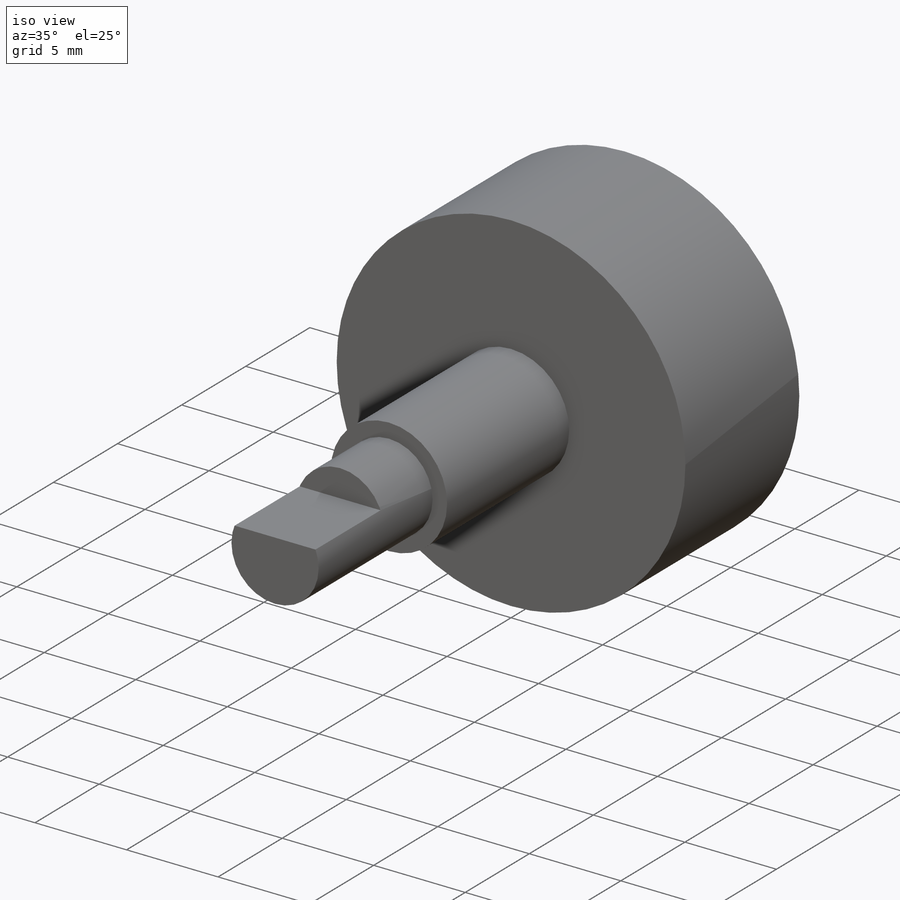
[diagram: iso view]
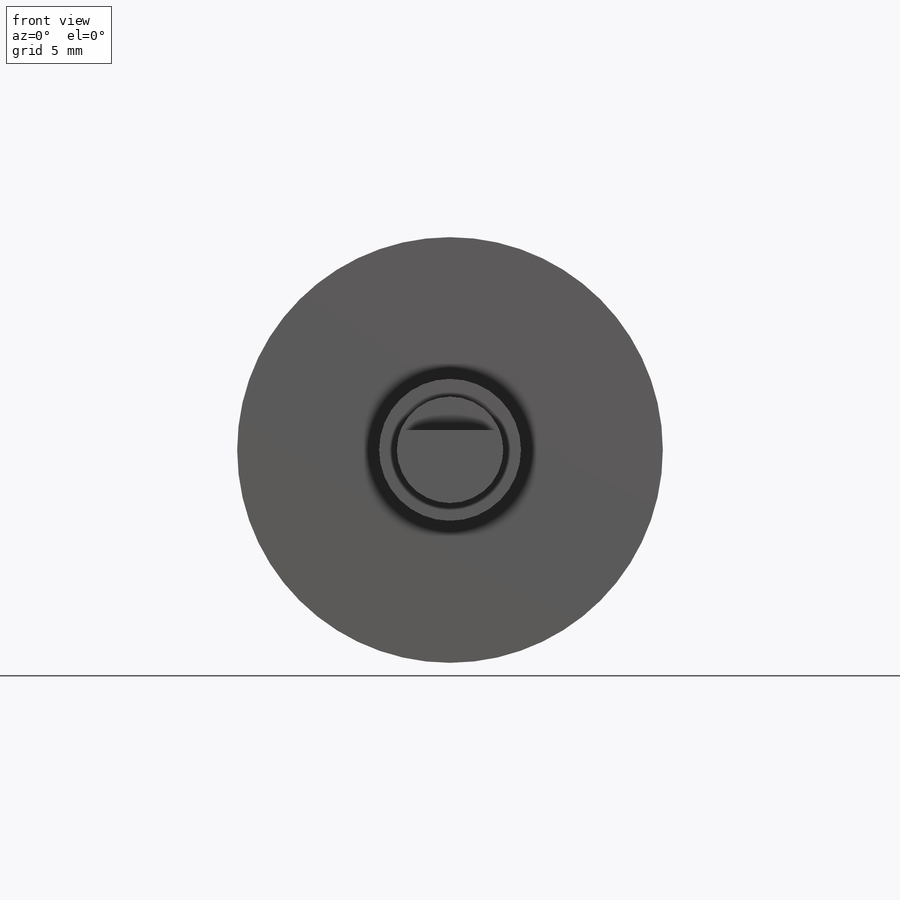
[diagram: front view]
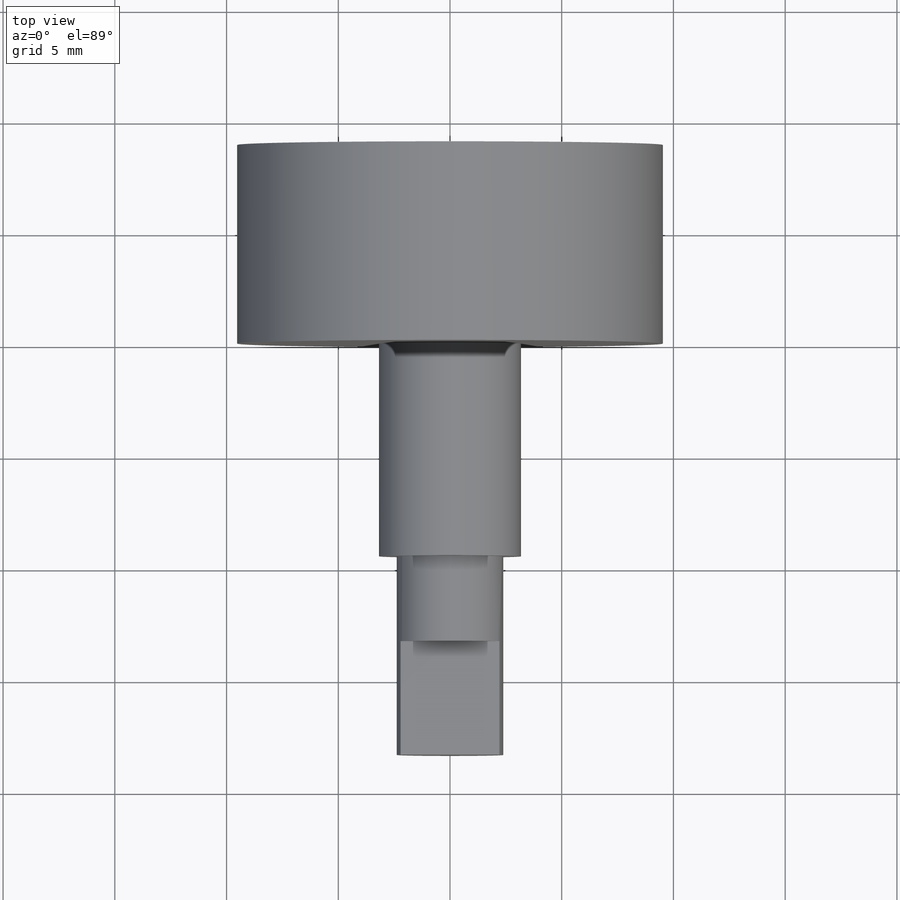
[diagram: top view]
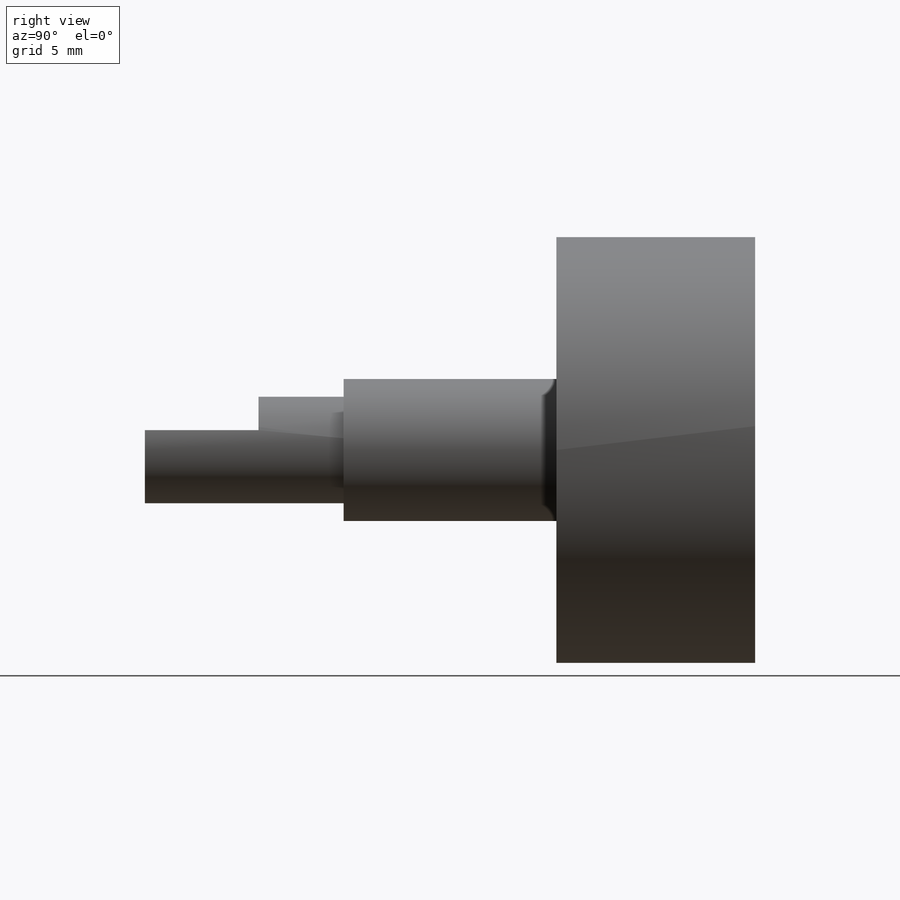
[diagram: right view]
SOLIDWORKS PART (.sldprt)
format: sldprt  version: not decoded by parser v0  size: 215,040 bytes
history: native  units: mm
features: sketch x4, extrude x3, material x1, cut_extrude x1 (+11 scaffold rows collapsed)
feature tree (20):
  scaffold x11  (default folders/planes/origin — collapsed)
  material  "Plain Carbon Steel"
  sketch  "Sketch1"  dims[D1=19.05mm]
  extrude  "Boss-Extrude1"  Depth=8.89mm
  sketch  "Sketch2"  dims[D1=6.35mm]
  extrude  "Boss-Extrude2"  Depth=9.525mm
  sketch  "Sketch3"  dims[D1=4.7625mm]
  extrude  "Boss-Extrude3"  Depth=8.89mm
  sketch  "Sketch4"  dims[D1=0.889mm]
  cut_extrude  "Cut-Extrude1"  Depth=5.08mm
decode coverage: 8 of 8 modeling features carry decoded parameters
note: suppression state not decoded; provenance and decode notes live in map.json
